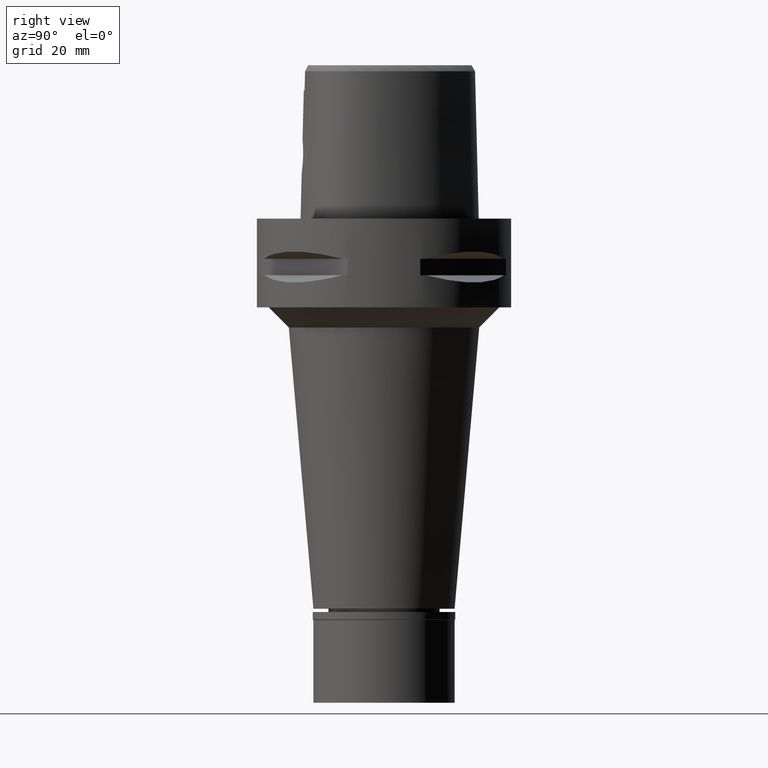
[diagram: clean part render]
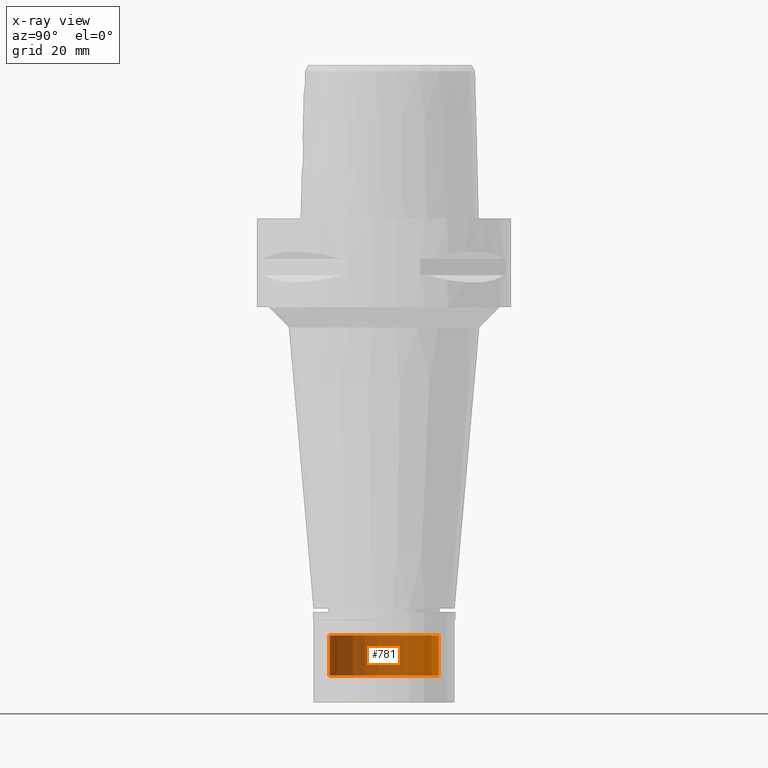
[diagram: x-ray — body ghosted, one internal face saturated and labeled with its STEP entity id]
A machine part, right view, then the same camera in x-ray: the body is ghosted and one INTERNAL B-rep face — a face not visible from any outside direction — is saturated and labeled: STEP entity #781.
In plain terms, the highlighted cylindrical surface (partial cylindrical patch) has radius 13.5 mm, axis along (0, 0, -1).
Its self-contained STEP definition (entity closure, byte-faithful):
#18 = EDGE_CURVE ( 'NONE', #3687, #2213, #4233, .T. ) ;
#67 = CIRCLE ( 'NONE', #4290, 13.50000000000000000 ) ;
#82 = VERTEX_POINT ( 'NONE', #4400 ) ;
#257 = CYLINDRICAL_SURFACE ( 'NONE', #2948, 13.50000000000000000 ) ;
#781 = ADVANCED_FACE ( 'NONE', ( #3848 ), #257, .T. ) ;
#893 = EDGE_LOOP ( 'NONE', ( #3793, #3589, #3891, #3513 ) ) ;
#1266 = DIRECTION ( 'NONE',  ( 0.0000000000000000000, 0.0000000000000000000, -1.000000000000000000 ) ) ;
#1358 = LINE ( 'NONE', #2929, #2070 ) ;
#1532 = CARTESIAN_POINT ( 'NONE',  ( 0.0000000000000000000, 0.0000000000000000000, 5.665000000000000036 ) ) ;
#1906 = DIRECTION ( 'NONE',  ( 0.0000000000000000000, 0.0000000000000000000, 1.000000000000000000 ) ) ;
#2070 = VECTOR ( 'NONE', #4505, 1000.000000000000000 ) ;
#2213 = VERTEX_POINT ( 'NONE', #2371 ) ;
#2371 = CARTESIAN_POINT ( 'NONE',  ( 0.0000000000000000000, -13.50000000000000000, -113.2999999999999972 ) ) ;
#2666 = CARTESIAN_POINT ( 'NONE',  ( 0.0000000000000000000, 0.0000000000000000000, -113.2999999999999972 ) ) ;
#2853 = DIRECTION ( 'NONE',  ( 0.0000000000000000000, -1.000000000000000000, 0.0000000000000000000 ) ) ;
#2894 = VERTEX_POINT ( 'NONE', #3352 ) ;
#2929 = CARTESIAN_POINT ( 'NONE',  ( 0.0000000000000000000, 13.50000000000000000, -103.2999999999999972 ) ) ;
#2948 = AXIS2_PLACEMENT_3D ( 'NONE', #1532, #3109, #4994 ) ;
#2987 = AXIS2_PLACEMENT_3D ( 'NONE', #2666, #1906, #3825 ) ;
#3109 = DIRECTION ( 'NONE',  ( 0.0000000000000000000, 0.0000000000000000000, -1.000000000000000000 ) ) ;
#3352 = CARTESIAN_POINT ( 'NONE',  ( 0.0000000000000000000, 13.50000000000000000, -103.2999999999999972 ) ) ;
#3513 = ORIENTED_EDGE ( 'NONE', *, *, #4750, .T. ) ;
#3524 = CARTESIAN_POINT ( 'NONE',  ( 0.0000000000000000000, -13.50000000000000000, -103.2999999999999972 ) ) ;
#3589 = ORIENTED_EDGE ( 'NONE', *, *, #5080, .F. ) ;
#3687 = VERTEX_POINT ( 'NONE', #3881 ) ;
#3744 = LINE ( 'NONE', #3524, #4298 ) ;
#3793 = ORIENTED_EDGE ( 'NONE', *, *, #18, .T. ) ;
#3825 = DIRECTION ( 'NONE',  ( 0.0000000000000000000, 1.000000000000000000, 0.0000000000000000000 ) ) ;
#3848 = FACE_OUTER_BOUND ( 'NONE', #893, .T. ) ;
#3881 = CARTESIAN_POINT ( 'NONE',  ( 0.0000000000000000000, 13.50000000000000000, -113.2999999999999972 ) ) ;
#3891 = ORIENTED_EDGE ( 'NONE', *, *, #4140, .T. ) ;
#4140 = EDGE_CURVE ( 'NONE', #82, #2894, #67, .T. ) ;
#4233 = CIRCLE ( 'NONE', #2987, 13.50000000000000000 ) ;
#4290 = AXIS2_PLACEMENT_3D ( 'NONE', #4807, #1266, #2853 ) ;
#4298 = VECTOR ( 'NONE', #4715, 1000.000000000000000 ) ;
#4400 = CARTESIAN_POINT ( 'NONE',  ( 0.0000000000000000000, -13.50000000000000000, -103.2999999999999972 ) ) ;
#4505 = DIRECTION ( 'NONE',  ( 0.0000000000000000000, 0.0000000000000000000, -1.000000000000000000 ) ) ;
#4715 = DIRECTION ( 'NONE',  ( 0.0000000000000000000, 0.0000000000000000000, -1.000000000000000000 ) ) ;
#4750 = EDGE_CURVE ( 'NONE', #2894, #3687, #1358, .T. ) ;
#4807 = CARTESIAN_POINT ( 'NONE',  ( 0.0000000000000000000, 0.0000000000000000000, -103.2999999999999972 ) ) ;
#4994 = DIRECTION ( 'NONE',  ( 0.0000000000000000000, -1.000000000000000000, 0.0000000000000000000 ) ) ;
#5080 = EDGE_CURVE ( 'NONE', #82, #2213, #3744, .T. ) ;